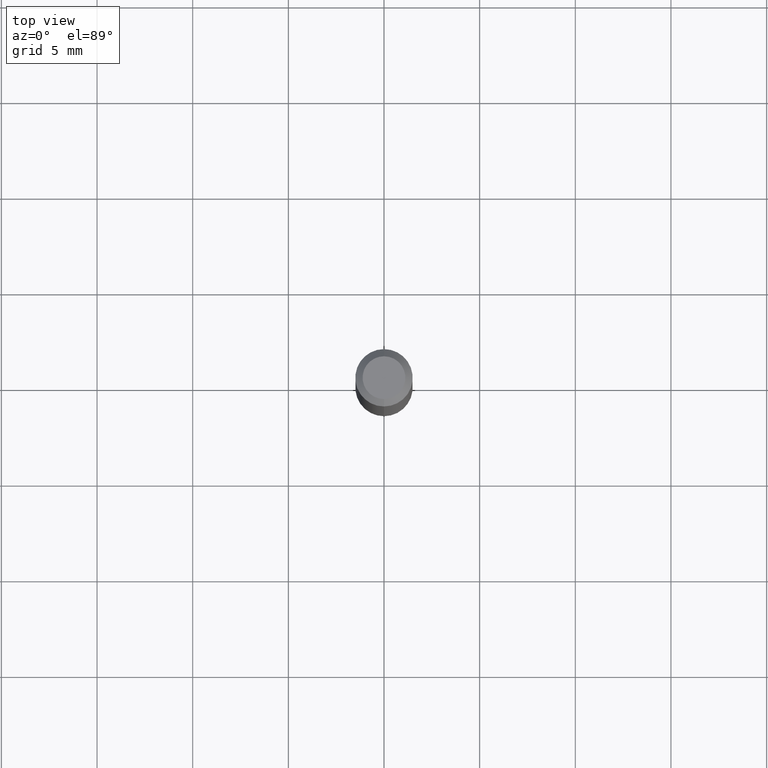
[diagram: clean part render]
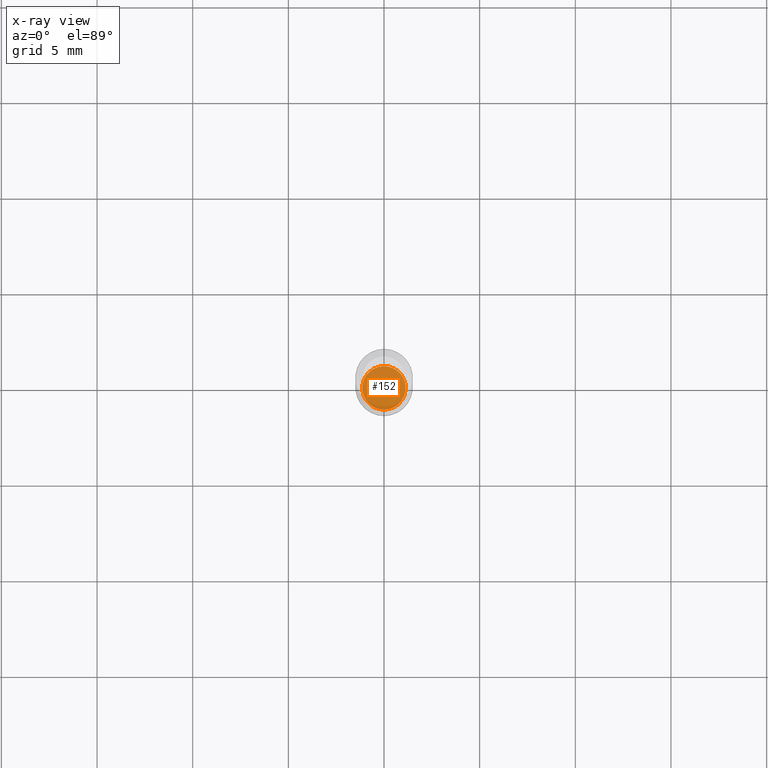
[diagram: x-ray — body ghosted, one internal face saturated and labeled with its STEP entity id]
A machine part, top view, then the same camera in x-ray: the body is ghosted and one INTERNAL B-rep face — a face not visible from any outside direction — is saturated and labeled: STEP entity #152.
In plain terms, the highlighted planar face has unit normal (-0, 0, 1).
Its self-contained STEP definition (entity closure, byte-faithful):
#1 = CARTESIAN_POINT ( 'NONE',  ( 3.200995024599552074E-16, 0.04479999999999572519, -1.224400000000000155 ) ) ;
#15 = CARTESIAN_POINT ( 'NONE',  ( 2.994271853771643302E-29, -4.274912687422267805E-15, -1.224399999999999933 ) ) ;
#59 = DIRECTION ( 'NONE',  ( -6.982962677686265922E-15, -1.000000000000000000, 3.491434733275292845E-15 ) ) ;
#69 = EDGE_CURVE ( 'NONE', #119, #392, #506, .T. ) ;
#70 = PLANE ( 'NONE',  #160 ) ;
#95 = AXIS2_PLACEMENT_3D ( 'NONE', #447, #410, #372 ) ;
#119 = VERTEX_POINT ( 'NONE', #209 ) ;
#145 = ORIENTED_EDGE ( 'NONE', *, *, #69, .F. ) ;
#152 = ADVANCED_FACE ( 'NONE', ( #416 ), #70, .F. ) ;
#160 = AXIS2_PLACEMENT_3D ( 'NONE', #247, #214, #59 ) ;
#177 = CIRCLE ( 'NONE', #422, 0.04479999999999999954 ) ;
#209 = CARTESIAN_POINT ( 'NONE',  ( -3.128367279603147534E-16, -0.04480000000000427390, -1.224399999999999711 ) ) ;
#214 = DIRECTION ( 'NONE',  ( -2.445501350679225031E-29, 3.491434733275292845E-15, 1.000000000000000000 ) ) ;
#247 = CARTESIAN_POINT ( 'NONE',  ( 2.994271853771643302E-29, -4.274912687422267805E-15, -1.224399999999999933 ) ) ;
#286 = ORIENTED_EDGE ( 'NONE', *, *, #492, .F. ) ;
#372 = DIRECTION ( 'NONE',  ( -6.982962677686266711E-15, -1.000000000000000000, 3.048937492928865273E-15 ) ) ;
#392 = VERTEX_POINT ( 'NONE', #1 ) ;
#410 = DIRECTION ( 'NONE',  ( -2.445501350679225311E-29, 3.491434733275292845E-15, 1.000000000000000000 ) ) ;
#416 = FACE_OUTER_BOUND ( 'NONE', #435, .T. ) ;
#422 = AXIS2_PLACEMENT_3D ( 'NONE', #15, #450, #446 ) ;
#435 = EDGE_LOOP ( 'NONE', ( #145, #286 ) ) ;
#446 = DIRECTION ( 'NONE',  ( -6.982962677686266711E-15, -1.000000000000000000, 3.048937492928865273E-15 ) ) ;
#447 = CARTESIAN_POINT ( 'NONE',  ( 2.994271853771643302E-29, -4.274912687422267805E-15, -1.224399999999999933 ) ) ;
#450 = DIRECTION ( 'NONE',  ( -2.445501350679225311E-29, 3.491434733275292845E-15, 1.000000000000000000 ) ) ;
#492 = EDGE_CURVE ( 'NONE', #392, #119, #177, .T. ) ;
#506 = CIRCLE ( 'NONE', #95, 0.04479999999999999954 ) ;